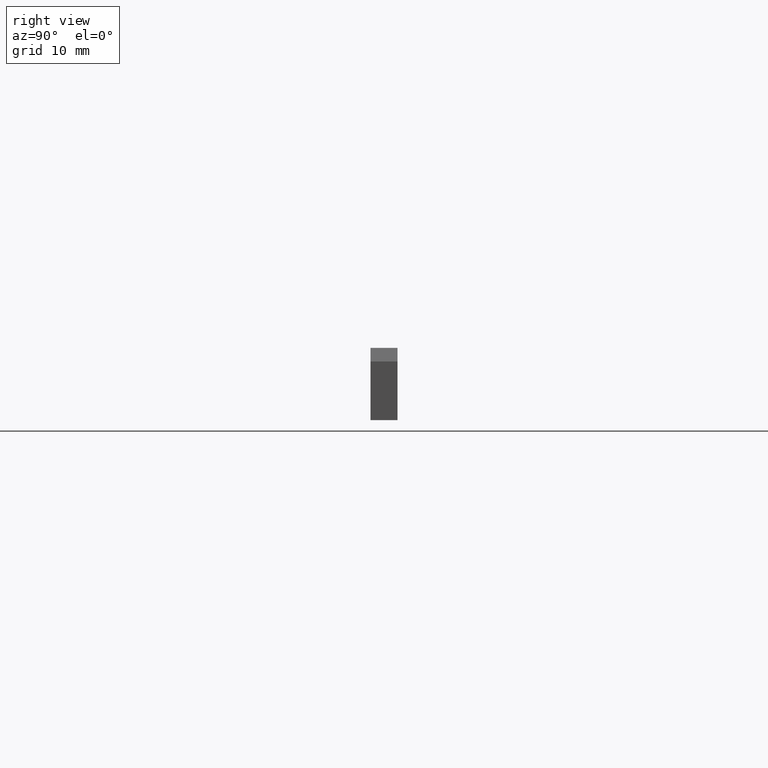
[diagram: clean part render]
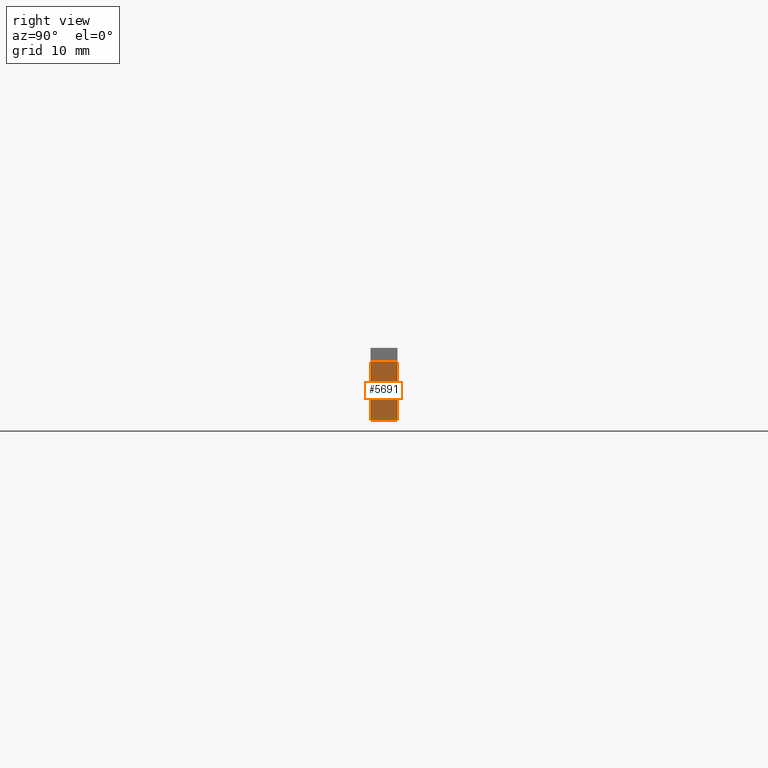
[diagram: same view with one face highlighted and labeled with its STEP entity id]
A machine part, right view. The second image highlights one B-rep face of the part: STEP entity #5691.
In plain terms, the highlighted face is a freeform B-spline surface patch.
Its self-contained STEP definition (entity closure, byte-faithful):
#2594=CARTESIAN_POINT('',(40.210005999999893,0.0,6.500000000000000));
#2595=VERTEX_POINT('',#2594);
#2601=CARTESIAN_POINT('',(40.210005999999893,0.0,0.0));
#2602=VERTEX_POINT('',#2601);
#2603=CARTESIAN_POINT('',(40.210005999999893,0.0,0.0));
#2604=CARTESIAN_POINT('',(40.210005999999893,0.0,6.500000000000000));
#2605=QUASI_UNIFORM_CURVE('',1,(#2603,#2604),.UNSPECIFIED.,.F.,.U.);
#2606=EDGE_CURVE('',#2602,#2595,#2605,.T.);
#2660=CARTESIAN_POINT('',(40.210005999999893,-3.000000000000115,0.0));
#2661=VERTEX_POINT('',#2660);
#2667=CARTESIAN_POINT('',(40.210005999999893,-3.000000000000115,6.500000000000000));
#2668=VERTEX_POINT('',#2667);
#2669=CARTESIAN_POINT('',(40.210005999999893,-3.000000000000115,0.0));
#2670=CARTESIAN_POINT('',(40.210005999999893,-3.000000000000115,6.500000000000000));
#2671=QUASI_UNIFORM_CURVE('',1,(#2669,#2670),.UNSPECIFIED.,.F.,.U.);
#2672=EDGE_CURVE('',#2661,#2668,#2671,.T.);
#5668=CARTESIAN_POINT('',(40.210005999999893,-3.000000000000115,6.500000000000000));
#5669=CARTESIAN_POINT('',(40.210005999999893,0.0,6.500000000000000));
#5670=QUASI_UNIFORM_CURVE('',1,(#5668,#5669),.UNSPECIFIED.,.F.,.U.);
#5671=EDGE_CURVE('',#2668,#2595,#5670,.T.);
#5676=CARTESIAN_POINT('',(40.210005999999893,-3.149849994185539,-0.324674987401739));
#5677=CARTESIAN_POINT('',(40.210005999999893,-3.149849994185539,6.824675161745327));
#5678=CARTESIAN_POINT('',(40.210005999999893,0.149850074651694,-0.324674987401739));
#5679=CARTESIAN_POINT('',(40.210005999999893,0.149850074651694,6.824675161745327));
#5680=B_SPLINE_SURFACE_WITH_KNOTS('',1,1,((#5676,#5678),(#5677,#5679)),.UNSPECIFIED.,.F.,.F.,.U.,(2,2),(2,2),(0.0,7.149350149147066),(0.0,3.299700068837233),.UNSPECIFIED.);
#5681=ORIENTED_EDGE('',*,*,#2606,.T.);
#5682=ORIENTED_EDGE('',*,*,#5671,.F.);
#5683=ORIENTED_EDGE('',*,*,#2672,.F.);
#5684=CARTESIAN_POINT('',(40.210005999999893,-3.000000000000115,0.0));
#5685=CARTESIAN_POINT('',(40.210005999999893,0.0,0.0));
#5686=QUASI_UNIFORM_CURVE('',1,(#5684,#5685),.UNSPECIFIED.,.F.,.U.);
#5687=EDGE_CURVE('',#2661,#2602,#5686,.T.);
#5688=ORIENTED_EDGE('',*,*,#5687,.T.);
#5689=EDGE_LOOP('',(#5681,#5682,#5683,#5688));
#5690=FACE_OUTER_BOUND('',#5689,.T.);
#5691=ADVANCED_FACE('',(#5690),#5680,.F.);